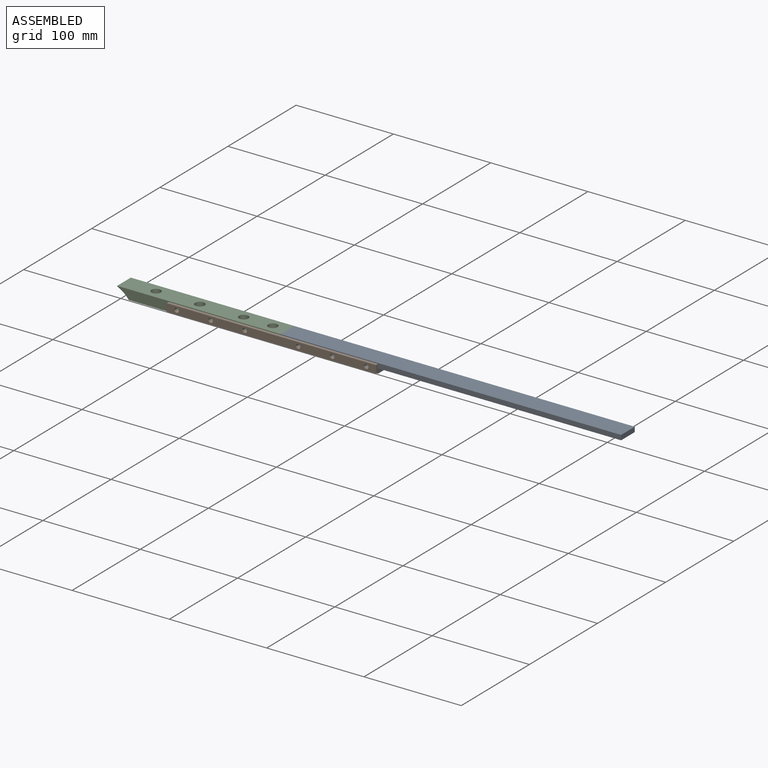
[diagram: assembled view]
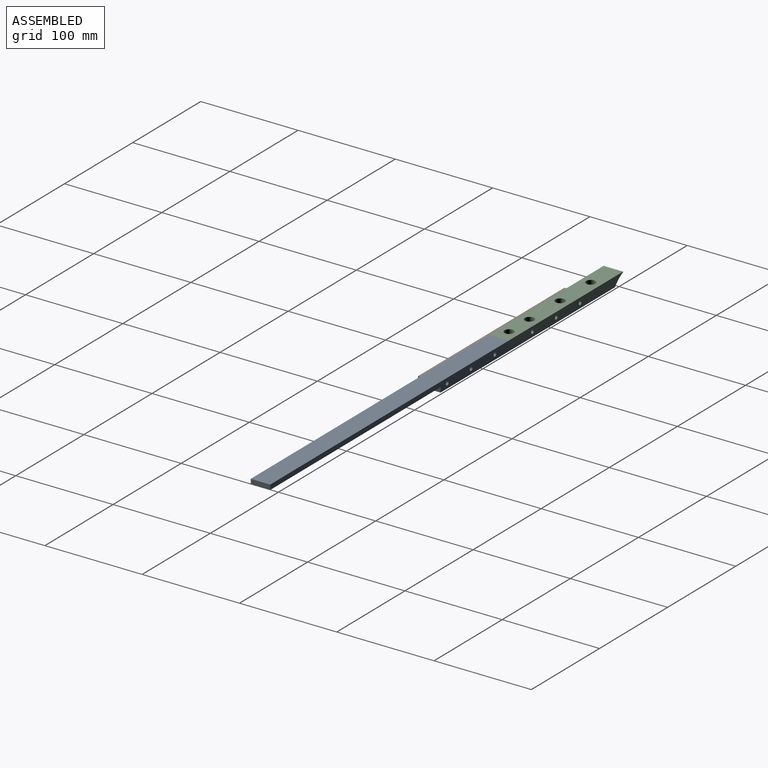
[diagram: assembled view, second angle]
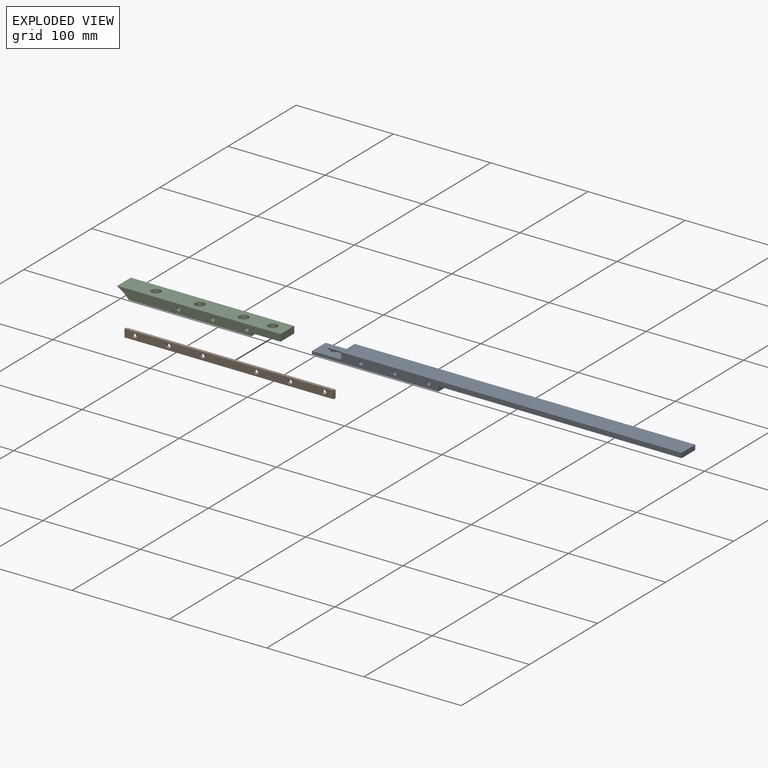
[diagram: exploded view]
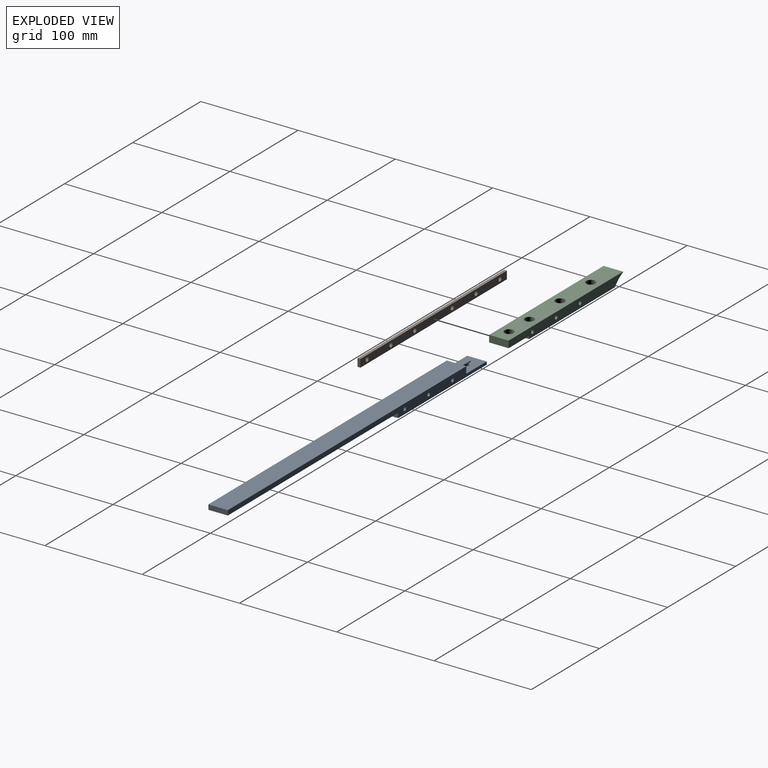
[diagram: exploded view, second angle]
ASSEMBLY  parts=3 mates=4
PART A: 14 faces, bbox 380x20x10 mm
  f0: plane 20x3mm, normal (-1,0,0), area 60mm2, adj f1,f7,f8,f9
  f1: plane 130x20mm, normal (0,0,-1), area 2580.4mm2, adj f0,f2,f8,f9,f10
  f2: plane 20x5mm, normal (1,0,0), area 100mm2, adj f1,f3,f8,f9
  f3: plane 250x20mm, normal (0,0,-1), area 5000mm2, adj f2,f4,f8,f9
  f4: plane 20x5mm, normal (1,0,0), area 100mm2, adj f3,f5,f8,f9
  f5: plane 350x20mm, normal (0,0,1), area 7000mm2, adj f4,f6,f8,f9
  f6: plane 20x7mm, normal (-1,0,0), area 140mm2, adj f5,f7,f8,f9
  f7: plane 30x20mm, normal (0,0,1), area 580.4mm2, adj f0,f6,f8,f9,f10
  f8: plane 380x10mm, normal (0,-1,0), area 2302.3mm2, adj f0,f1,f2,f3,f4,f5,f6,f7
  f9: plane 380x10mm, normal (0,1,0), area 2302.3mm2, adj f0,f1,f2,f3,f4,f5,f6,f7
  f10: cylinder r=2.5mm len=5mm, axis (0,0,1), area 47.1mm2, adj f1,f7
  f11: cylinder r=2mm len=20mm, axis (0,-1,0), area 251.3mm2, adj f8,f9
  f12: cylinder r=2mm len=20mm, axis (0,-1,0), area 251.3mm2, adj f8,f9
  f13: cylinder r=2mm len=20mm, axis (0,-1,0), area 251.3mm2, adj f8,f9
PART B: 12 faces, bbox 215x3x8 mm
  f0: plane 8x3mm, normal (1,0,0), area 24mm2, adj f1,f3,f4,f5
  f1: plane 215x3mm, normal (0,0,1), area 645mm2, adj f0,f2,f4,f5
  f2: plane 8x3mm, normal (-1,0,0), area 24mm2, adj f1,f3,f4,f5
  f3: plane 215x3mm, normal (0,0,-1), area 645mm2, adj f0,f2,f4,f5
  f4: plane 215x8mm, normal (0,-1,0), area 1624.6mm2, adj f0,f1,f2,f3,f6,f7,f8,f9
  f5: plane 215x8mm, normal (0,1,0), area 1624.6mm2, adj f0,f1,f2,f3,f6,f7,f8,f9
  f6: cylinder r=2.25mm len=4.5mm, axis (0,-1,0), area 42.4mm2, adj f4,f5
  f7: cylinder r=2.25mm len=4.5mm, axis (0,-1,0), area 42.4mm2, adj f4,f5
  f8: cylinder r=2.25mm len=4.5mm, axis (0,-1,0), area 42.4mm2, adj f4,f5
  f9: cylinder r=2.25mm len=4.5mm, axis (0,-1,0), area 42.4mm2, adj f4,f5
  f10: cylinder r=2.25mm len=4.5mm, axis (0,-1,0), area 42.4mm2, adj f4,f5
  f11: cylinder r=2.25mm len=4.5mm, axis (0,-1,0), area 42.4mm2, adj f4,f5
PART C: 24 faces, bbox 168x20x10 mm
  f0: cylinder r=2.75mm len=5.5mm, axis (0,0,1), area 82.9mm2, adj f5,f19
  f1: cylinder r=2.75mm len=5.5mm, axis (0,0,1), area 82.9mm2, adj f5,f17
  f2: cylinder r=2.75mm len=5.5mm, axis (0,0,1), area 82.9mm2, adj f5,f15
  f3: cylinder r=2.72mm len=5.45mm, axis (0,0,1), area 30.8mm2, adj f7,f13
  f4: plane 20x0.5mm, normal (-1,0,0), area 10.1mm2, adj f9,f10,f11,f12
  f5: plane 126x20mm, normal (0,0,-1), area 2448.7mm2, adj f0,f1,f2,f6,f10,f11,f12
  f6: plane 20x3mm, normal (1,0,0), area 60mm2, adj f5,f7,f10,f11
  f7: plane 30x20mm, normal (0,0,-1), area 576.7mm2, adj f3,f6,f8,f10,f11
  f8: plane 20x7mm, normal (1,0,0), area 140mm2, adj f7,f9,f10,f11
  f9: plane 168x20mm, normal (0,0,1), area 3073.3mm2, adj f4,f8,f10,f11,f14,f16,f18,f20
  f10: plane 168x10mm, normal (0,-1,0), area 1485.2mm2, adj f4,f5,f6,f7,f8,f9,f12,f21
  f11: plane 168x10mm, normal (0,1,0), area 1485.2mm2, adj f4,f5,f6,f7,f8,f9,f12,f21
  f12: cylinder r=30mm len=20mm, axis (0,-1,0), area 309.5mm2, adj f4,f5,f10,f11
  f13: plane 9.5x9.5mm, normal (0,0,1), area 47.6mm2, adj f3,f14
  f14: cylinder r=4.75mm len=9.5mm, axis (0,0,1), area 155.2mm2, adj f9,f13
  f15: plane 9.71x9.71mm, normal (0,0,1), area 50.3mm2, adj f2,f16
  f16: cylinder r=4.85mm len=9.71mm, axis (0,0,1), area 158.6mm2, adj f9,f15
  f17: plane 9.5x9.5mm, normal (0,0,1), area 47.1mm2, adj f1,f18
  f18: cylinder r=4.75mm len=9.5mm, axis (0,0,1), area 155.2mm2, adj f9,f17
  f19: plane 9.5x9.5mm, normal (0,0,1), area 47.1mm2, adj f0,f20
  f20: cylinder r=4.75mm len=9.5mm, axis (0,0,1), area 155.2mm2, adj f9,f19
  f21: cylinder r=2mm len=20mm, axis (0,-1,0), area 251.3mm2, adj f10,f11
  f22: cylinder r=2mm len=20mm, axis (0,-1,0), area 251.3mm2, adj f10,f11
  f23: cylinder r=2mm len=20mm, axis (0,-1,0), area 251.3mm2, adj f10,f11
PLACE A t=(-57.1,7.59,-97.64)mm
PLACE B t=(-171.96,-12.41,-96.43)mm
PLACE C t=(-195.1,7.59,-97.64)mm
MATE parallel A.f6 <-> C.f8  axis (-1,0,0) through (-27.1,7.59,-94.64)mm
MATE parallel B.f5 <-> C.f10  axis (0,1,0) through (-34.46,-12.41,-92.43)mm
MATE parallel C.f10 <-> A.f8  axis (0,-1,0) through (-42.1,-12.41,-94.64)mm
MATE parallel C.f7 <-> A.f7  axis (0,0,-1) through (-27.1,-2.41,-94.64)mm
